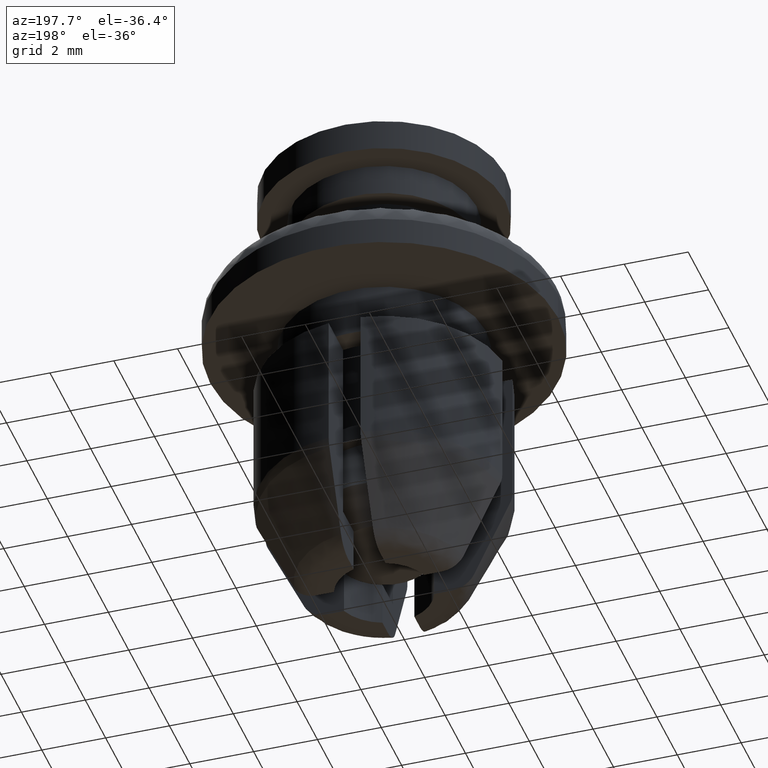
[diagram: clean part render]
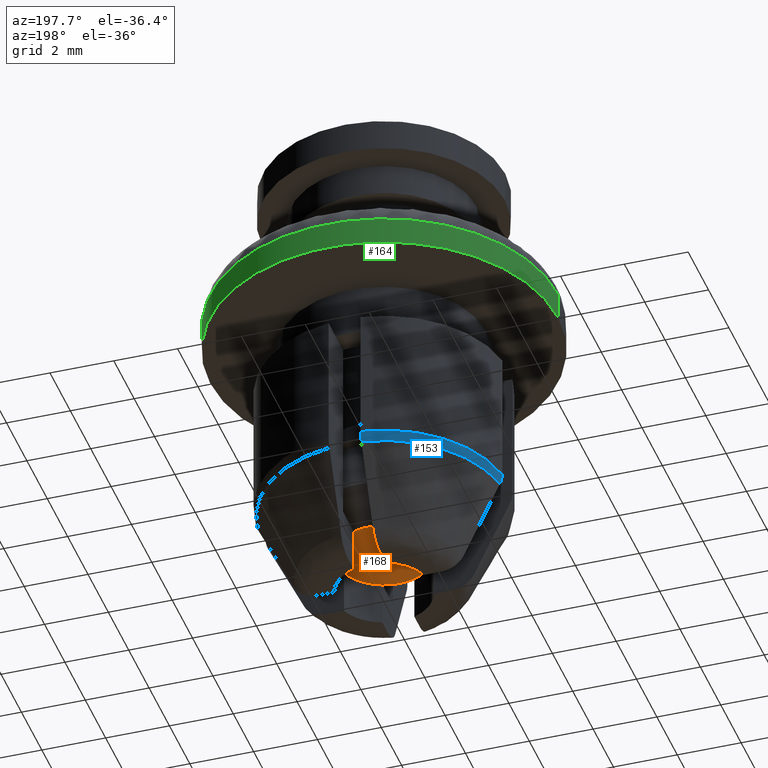
[diagram: same view with three faces highlighted in distinct colors, each labeled with its STEP entity id]
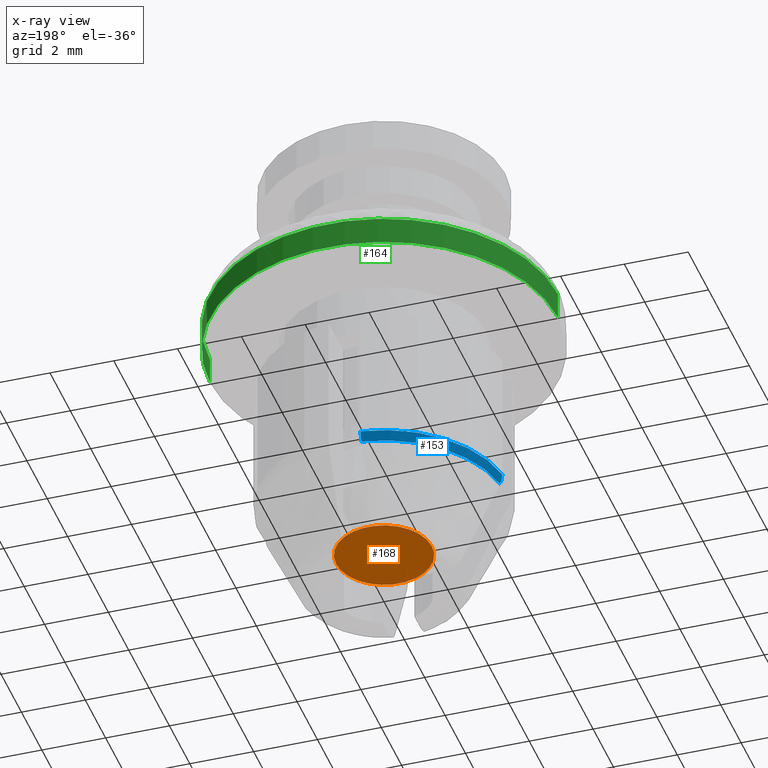
[diagram: x-ray of the same camera — body ghosted, the three highlighted faces saturated]
A machine part, auxiliary view with three faces highlighted in distinct colors.
The next image is the same camera in x-ray (body ghosted, the three faces saturated) — at least one of them is partly hidden behind the body in this view.
Their STEP definitions:

[orange] entity #168 — the highlighted planar face has unit normal (0, 0, -1).
#168=ADVANCED_FACE('',(#754),#753,.T.);
#753=PLANE('',#1398);
#754=FACE_OUTER_BOUND('',#1399,.T.);
#1395=CARTESIAN_POINT('',(3.44977000000E+00,-3.11748360753E+00,-1.13000000000E+01));
#1396=DIRECTION('',(0.00000000000E+00,0.00000000000E+00,-1.00000000000E+00));
#1397=DIRECTION('',(-1.00000000000E+00,0.00000000000E+00,0.00000000000E+00));
#1398=AXIS2_PLACEMENT_3D('',#1395,#1396,#1397);
#1399=EDGE_LOOP('',(#1850,#1851));
#1850=ORIENTED_EDGE('',*,*,#2088,.T.);
#1851=ORIENTED_EDGE('',*,*,#2089,.T.);
#2088=EDGE_CURVE('',#3128,#3129,#3130,.T.);
#2089=EDGE_CURVE('',#3129,#3128,#3136,.T.);
#3128=VERTEX_POINT('',#4073);
#3129=VERTEX_POINT('',#4074);
#3130=CIRCLE('',#4078,1.49990000000E+00);
#3136=CIRCLE('',#4082,1.49990000000E+00);
#4073=CARTESIAN_POINT('',(-1.49990000000E+00,0.00000000000E+00,-1.13000000000E+01));
#4074=CARTESIAN_POINT('',(1.49990000000E+00,0.00000000000E+00,-1.13000000000E+01));
#4075=CARTESIAN_POINT('',(0.00000000000E+00,0.00000000000E+00,-1.13000000000E+01));
#4076=DIRECTION('',(-0.00000000000E+00,0.00000000000E+00,-1.00000000000E+00));
#4077=DIRECTION('',(-1.00000000000E+00,-1.22460635382E-16,0.00000000000E+00));
#4078=AXIS2_PLACEMENT_3D('',#4075,#4076,#4077);
#4079=CARTESIAN_POINT('',(0.00000000000E+00,0.00000000000E+00,-1.13000000000E+01));
#4080=DIRECTION('',(-0.00000000000E+00,0.00000000000E+00,-1.00000000000E+00));
#4081=DIRECTION('',(-1.00000000000E+00,-1.22460635382E-16,0.00000000000E+00));
#4082=AXIS2_PLACEMENT_3D('',#4079,#4080,#4081);

[blue] entity #153 — the highlighted face is a freeform B-spline surface patch.
#153=ADVANCED_FACE('',(#604),#603,.T.);
#603=( BOUNDED_SURFACE() B_SPLINE_SURFACE( 2,2,((#1256,#1257,#1258),(#1259,#1260,#1261),(#1262,#1263,#1264)), .UNSPECIFIED.,.F.,.F.,.F.) B_SPLINE_SURFACE_WITH_KNOTS((3,3),(3,3),(-4.16385416755E-05,4.54788848502E-01),(5.44145213313E-02,1.35762366374E+00), .UNSPECIFIED. ) GEOMETRIC_REPRESENTATION_ITEM() RATIONAL_B_SPLINE_SURFACE(((9.82285936081E-01,7.78665101791E-01,9.82286471125E-01),(9.25125923455E-01,7.33353950104E-01,9.25126427365E-01),(9.17617339473E-01,7.27401841766E-01,9.17617839293E-01))) REPRESENTATION_ITEM('') SURFACE() );
#604=FACE_OUTER_BOUND('',#1265,.T.);
#1256=CARTESIAN_POINT('',(-5.04949338049E-01,3.86717288997E+00,-7.83396877109E+00));
#1257=CARTESIAN_POINT('',(-3.47886016898E+00,3.47885968334E+00,-7.83396877109E+00));
#1258=CARTESIAN_POINT('',(-3.86717296046E+00,5.04948798207E-01,-7.83396877109E+00));
#1259=CARTESIAN_POINT('',(-5.04950270373E-01,3.86718003021E+00,-8.00690589039E+00));
#1260=CARTESIAN_POINT('',(-3.47886659225E+00,3.47886610661E+00,-8.00690589039E+00));
#1261=CARTESIAN_POINT('',(-3.86718010070E+00,5.04949730530E-01,-8.00690589039E+00));
#1262=CARTESIAN_POINT('',(-4.95146493723E-01,3.79209744979E+00,-8.16238495445E+00));
#1263=CARTESIAN_POINT('',(-3.41132324577E+00,3.41132276956E+00,-8.16238495445E+00));
#1264=CARTESIAN_POINT('',(-3.79209751891E+00,4.95145964362E-01,-8.16238495445E+00));
#1265=EDGE_LOOP('',(#1748,#1749,#1750,#1751));
#1748=ORIENTED_EDGE('',*,*,#2065,.F.);
#1749=ORIENTED_EDGE('',*,*,#1955,.T.);
#1750=ORIENTED_EDGE('',*,*,#2007,.T.);
#1751=ORIENTED_EDGE('',*,*,#2070,.T.);
#1955=EDGE_CURVE('',#2251,#2244,#2252,.T.);
#2007=EDGE_CURVE('',#2244,#2606,#2607,.T.);
#2065=EDGE_CURVE('',#2251,#2985,#2986,.T.);
#2070=EDGE_CURVE('',#2606,#2985,#3016,.T.);
#2244=VERTEX_POINT('',#3495);
#2251=VERTEX_POINT('',#3499);
#2252=(BOUNDED_CURVE() B_SPLINE_CURVE(3,(#3500,#3501,#3502,#3503,#3504,#3505),.UNSPECIFIED.,.F.,.F.) B_SPLINE_CURVE_WITH_KNOTS((4,2,4),(4.64821554045E-03,4.81718217281E-03,4.98614880518E-03),.UNSPECIFIED.) CURVE() GEOMETRIC_REPRESENTATION_ITEM() RATIONAL_B_SPLINE_CURVE((1.00000000000E+00,1.00000000000E+00,1.00000000000E+00,1.00000000000E+00,1.00000000000E+00,1.00000000000E+00)) REPRESENTATION_ITEM('') );
#2606=VERTEX_POINT('',#3738);
#2607=CIRCLE('',#3742,3.90000000000E+00);
#2985=VERTEX_POINT('',#3993);
#2986=CIRCLE('',#3997,3.82428734418E+00);
#3016=(BOUNDED_CURVE() B_SPLINE_CURVE(3,(#4016,#4017,#4018,#4019,#4020,#4021),.UNSPECIFIED.,.F.,.F.) B_SPLINE_CURVE_WITH_KNOTS((4,2,4),(2.51939268983E-03,2.68851183718E-03,2.85763098452E-03),.UNSPECIFIED.) CURVE() GEOMETRIC_REPRESENTATION_ITEM() RATIONAL_B_SPLINE_CURVE((1.00000000000E+00,1.00000000000E+00,1.00000000000E+00,1.00000000000E+00,1.00000000000E+00,1.00000000000E+00)) REPRESENTATION_ITEM('') );
#3495=CARTESIAN_POINT('',(-3.86781592116E+00,5.00000000000E-01,-7.83400000000E+00));
#3499=CARTESIAN_POINT('',(-3.79146062763E+00,5.00000000000E-01,-8.16238480092E+00));
#3500=CARTESIAN_POINT('',(-3.79146062763E+00,5.00000000000E-01,-8.16238480092E+00));
#3501=CARTESIAN_POINT('',(-3.81650764745E+00,5.00000000000E-01,-8.11139608744E+00));
#3502=CARTESIAN_POINT('',(-3.83578287035E+00,5.00000000000E-01,-8.05719391402E+00));
#3503=CARTESIAN_POINT('',(-3.86127975215E+00,5.00000000000E-01,-7.94738455117E+00));
#3504=CARTESIAN_POINT('',(-3.86781592116E+00,5.00000000000E-01,-7.89094788037E+00));
#3505=CARTESIAN_POINT('',(-3.86781592116E+00,5.00000000000E-01,-7.83400000000E+00));
#3738=CARTESIAN_POINT('',(-5.00000000000E-01,3.86781592116E+00,-7.83400000000E+00));
#3739=CARTESIAN_POINT('',(0.00000000000E+00,0.00000000000E+00,-7.83400000000E+00));
#3740=DIRECTION('',(0.00000000000E+00,0.00000000000E+00,-1.00000000000E+00));
#3741=DIRECTION('',(1.00000000000E+00,-0.00000000000E+00,-0.00000000000E+00));
#3742=AXIS2_PLACEMENT_3D('',#3739,#3740,#3741);
#3993=CARTESIAN_POINT('',(-5.00000000000E-01,3.79146062763E+00,-8.16238480092E+00));
#3994=CARTESIAN_POINT('',(0.00000000000E+00,0.00000000000E+00,-8.16238480092E+00));
#3995=DIRECTION('',(0.00000000000E+00,0.00000000000E+00,-1.00000000000E+00));
#3996=DIRECTION('',(1.00000000000E+00,-0.00000000000E+00,-0.00000000000E+00));
#3997=AXIS2_PLACEMENT_3D('',#3994,#3995,#3996);
#4016=CARTESIAN_POINT('',(-5.00000000000E-01,3.86781592116E+00,-7.83400000000E+00));
#4017=CARTESIAN_POINT('',(-5.00000000000E-01,3.86781592116E+00,-7.89106722683E+00));
#4018=CARTESIAN_POINT('',(-5.00000000000E-01,3.86128336600E+00,-7.94739456207E+00));
#4019=CARTESIAN_POINT('',(-5.00000000000E-01,3.83574470196E+00,-8.05733268714E+00));
#4020=CARTESIAN_POINT('',(-5.00000000000E-01,3.81636238245E+00,-8.11169180628E+00));
#4021=CARTESIAN_POINT('',(-5.00000000000E-01,3.79146062763E+00,-8.16238480092E+00));

[green] entity #164 — the highlighted cylindrical surface (partial cylindrical patch) has radius 5.45 mm, axis along (0, 0, 1).
#164=ADVANCED_FACE('',(#714),#713,.T.);
#713=CYLINDRICAL_SURFACE('',#1378,5.45000000000E+00);
#714=FACE_OUTER_BOUND('',#1379,.T.);
#1375=CARTESIAN_POINT('',(0.00000000000E+00,0.00000000000E+00,0.00000000000E+00));
#1376=DIRECTION('',(-0.00000000000E+00,-0.00000000000E+00,1.00000000000E+00));
#1377=DIRECTION('',(1.00000000000E+00,0.00000000000E+00,0.00000000000E+00));
#1378=AXIS2_PLACEMENT_3D('',#1375,#1376,#1377);
#1379=EDGE_LOOP('',(#1818,#1819,#1820,#1821));
#1818=ORIENTED_EDGE('',*,*,#2083,.T.);
#1819=ORIENTED_EDGE('',*,*,#2084,.F.);
#1820=ORIENTED_EDGE('',*,*,#2021,.F.);
#1821=ORIENTED_EDGE('',*,*,#2085,.T.);
#2021=EDGE_CURVE('',#2699,#2700,#2701,.T.);
#2083=EDGE_CURVE('',#3079,#3078,#3098,.T.);
#2084=EDGE_CURVE('',#2700,#3078,#3104,.T.);
#2085=EDGE_CURVE('',#2699,#3079,#3110,.T.);
#2699=VERTEX_POINT('',#3803);
#2700=VERTEX_POINT('',#3804);
#2701=CIRCLE('',#3808,5.45000000000E+00);
#3078=VERTEX_POINT('',#4049);
#3079=VERTEX_POINT('',#4050);
#3098=CIRCLE('',#4064,5.45000000000E+00);
#3104=(BOUNDED_CURVE() B_SPLINE_CURVE(1,(#4065,#4066),.UNSPECIFIED.,.F.,.F.) B_SPLINE_CURVE_WITH_KNOTS((2,2),(8.33332935974E-02,9.16666633252E-01),.UNSPECIFIED.) CURVE() GEOMETRIC_REPRESENTATION_ITEM() RATIONAL_B_SPLINE_CURVE((1.00000000000E+00,1.00000000000E+00)) REPRESENTATION_ITEM('') );
#3110=(BOUNDED_CURVE() B_SPLINE_CURVE(1,(#4067,#4068),.UNSPECIFIED.,.F.,.F.) B_SPLINE_CURVE_WITH_KNOTS((2,2),(8.33333333333E-02,9.16666666667E-01),.UNSPECIFIED.) CURVE() GEOMETRIC_REPRESENTATION_ITEM() RATIONAL_B_SPLINE_CURVE((7.50000000000E-01,7.50000000000E-01)) REPRESENTATION_ITEM('') );
#3803=CARTESIAN_POINT('',(-5.45000000000E+00,0.00000000000E+00,-2.00000000000E+00));
#3804=CARTESIAN_POINT('',(5.45000000000E+00,2.96059473233E-16,-2.00000000000E+00));
#3805=CARTESIAN_POINT('',(0.00000000000E+00,0.00000000000E+00,-2.00000000000E+00));
#3806=DIRECTION('',(-0.00000000000E+00,0.00000000000E+00,-1.00000000000E+00));
#3807=DIRECTION('',(-1.00000000000E+00,-1.22460635382E-16,0.00000000000E+00));
#3808=AXIS2_PLACEMENT_3D('',#3805,#3806,#3807);
#4049=CARTESIAN_POINT('',(5.45000000000E+00,2.96059473233E-16,-1.13900000000E+00));
#4050=CARTESIAN_POINT('',(-5.45000000000E+00,0.00000000000E+00,-1.13900000000E+00));
#4061=CARTESIAN_POINT('',(0.00000000000E+00,0.00000000000E+00,-1.13900000000E+00));
#4062=DIRECTION('',(-0.00000000000E+00,0.00000000000E+00,-1.00000000000E+00));
#4063=DIRECTION('',(-1.00000000000E+00,-1.22460635382E-16,0.00000000000E+00));
#4064=AXIS2_PLACEMENT_3D('',#4061,#4062,#4063);
#4065=CARTESIAN_POINT('',(5.45000000000E+00,0.00000000000E+00,-2.00000004106E+00));
#4066=CARTESIAN_POINT('',(5.45000000000E+00,0.00000000000E+00,-1.13900003452E+00));
#4067=CARTESIAN_POINT('',(-5.45000000000E+00,0.00000000000E+00,-2.00000000000E+00));
#4068=CARTESIAN_POINT('',(-5.45000000000E+00,0.00000000000E+00,-1.13900000000E+00));